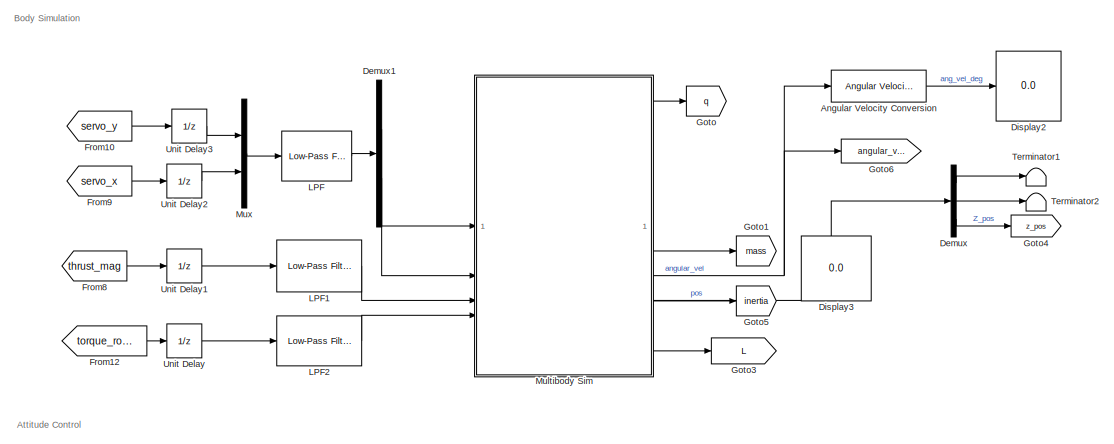
[diagram: root canvas - part 1/3, top center region]
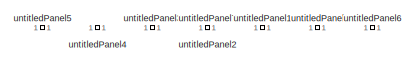
[diagram: root canvas - part 2/3, middle left region]
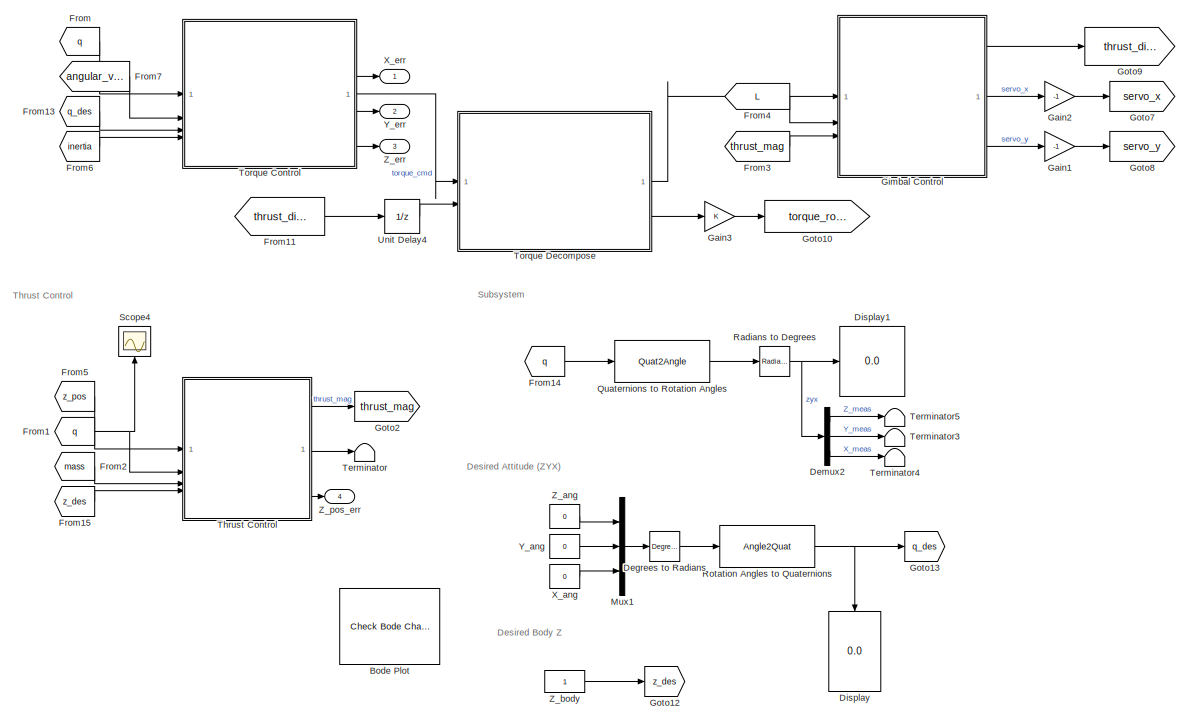
[diagram: root canvas - part 3/3, bottom right region]
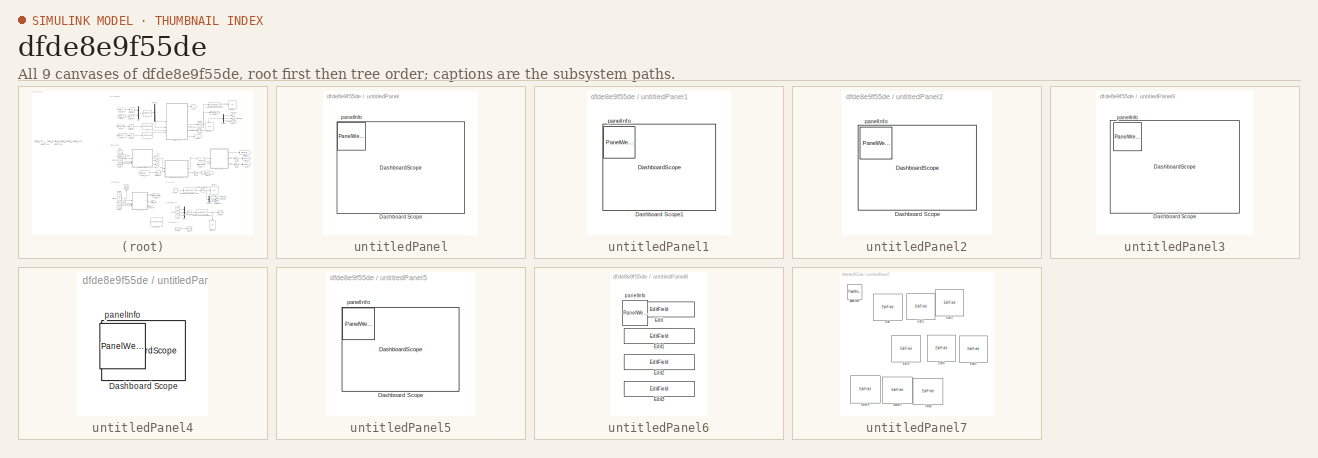
[diagram: thumbnail index - all 9 canvases of the model, root first then tree order]
MODEL slx_dfde8e9f55de
KIND model
CONFIG AbsTol = auto
CONFIG EnableMultiTasking = off
CONFIG FixedStep = 0.001
CONFIG MaxStep = auto
CONFIG MinStep = auto
CONFIG RelTol = 1e-3
CONFIG SampleTimeConstraint = Unconstrained
CONFIG SolverName = VariableStepAuto
CONFIG StartTime = 0.0
CONFIG StopTime = 5
BLOCK [Reference] Angular Velocity Conversion  REF=aerolibconvert2/Angular Velocity
Conversion
  SourceBlock = aerolibconvert2/Angular Velocity\nConversion
  SourceType = Angular Velocity Conversion
BLOCK [Reference] Bode Plot  REF=slctrl_linear/Check Bode 
Characteristics
  InstantiateOnLoad = on
  LibrarySourceBlock = slctrlblks/Linear Analysis Plots/Bode Plot
  SourceBlock = slctrl_linear/Check Bode \nCharacteristics
  SourceType = Checks_Bode
BLOCK [Reference] Degrees to Radians  REF=simulink_extras/Transformations/Degrees to
Radians
  SourceBlock = simulink_extras/Transformations/Degrees to\nRadians
  SourceType = DegreesToRadians
BLOCK [Demux] Demux
  Outputs = 3
BLOCK [Demux] Demux1
  Outputs = 2
BLOCK [Demux] Demux2
  Outputs = 3
BLOCK [Display] Display
  Decimation = 1
  NameLocation = left
BLOCK [Display] Display1
  Decimation = 1
BLOCK [Display] Display2
  Decimation = 1
BLOCK [Display] Display3
  Decimation = 1
  NameLocation = left
BLOCK [From] From
  GotoTag = q
BLOCK [From] From1
  GotoTag = q
BLOCK [From] From10
  GotoTag = servo_y
BLOCK [From] From11
  GotoTag = thrust_direction
BLOCK [From] From12
  GotoTag = torque_roll_mag
BLOCK [From] From13
  GotoTag = q_des
BLOCK [From] From14
  GotoTag = q
BLOCK [From] From15
  GotoTag = z_des
BLOCK [From] From2
  GotoTag = mass
BLOCK [From] From3
  GotoTag = thrust_mag
BLOCK [From] From4
  GotoTag = L
BLOCK [From] From5
  GotoTag = z_pos
BLOCK [From] From6
  GotoTag = inertia
BLOCK [From] From7
  GotoTag = angular_vel
BLOCK [From] From8
  GotoTag = thrust_mag
BLOCK [From] From9
  GotoTag = servo_x
BLOCK [Gain] Gain1
  Gain = -1
BLOCK [Gain] Gain2
  Gain = -1
BLOCK [Gain] Gain3
BLOCK [ModelReference] Gimbal Control
  ModelNameDialog = Gimbal_Control.slx
  ModelReferenceVersion = 1.54
BLOCK [Goto] Goto
  GotoTag = q
BLOCK [Goto] Goto1
  GotoTag = mass
BLOCK [Goto] Goto10
  GotoTag = torque_roll_mag
BLOCK [Goto] Goto12
  GotoTag = z_des
BLOCK [Goto] Goto13
  GotoTag = q_des
BLOCK [Goto] Goto2
  GotoTag = thrust_mag
BLOCK [Goto] Goto3
  GotoTag = L
BLOCK [Goto] Goto4
  GotoTag = z_pos
BLOCK [Goto] Goto5
  GotoTag = inertia
BLOCK [Goto] Goto6
  GotoTag = angular_vel
BLOCK [Goto] Goto7
  GotoTag = servo_x
BLOCK [Goto] Goto8
  GotoTag = servo_y
BLOCK [Goto] Goto9
  GotoTag = thrust_direction
BLOCK [Reference] LPF  REF=eeGeneralControl/Low-Pass Filter
(Discrete or Continuous)
  LibrarySourceBlock = ee_sl_lib/General Control/Low-Pass Filter\n(Discrete or Continuous)
  SourceBlock = eeGeneralControl/Low-Pass Filter\n(Discrete or Continuous)
  SourceType = Low-Pass Filter (Discrete or Continuous)
BLOCK [Reference] LPF1  REF=eeGeneralControl/Low-Pass Filter
(Discrete or Continuous)
  LibrarySourceBlock = ee_sl_lib/General Control/Low-Pass Filter\n(Discrete or Continuous)
  SourceBlock = eeGeneralControl/Low-Pass Filter\n(Discrete or Continuous)
  SourceType = Low-Pass Filter (Discrete or Continuous)
BLOCK [Reference] LPF2  REF=eeGeneralControl/Low-Pass Filter
(Discrete or Continuous)
  LibrarySourceBlock = ee_sl_lib/General Control/Low-Pass Filter\n(Discrete or Continuous)
  SourceBlock = eeGeneralControl/Low-Pass Filter\n(Discrete or Continuous)
  SourceType = Low-Pass Filter (Discrete or Continuous)
BLOCK [SubSystem] Multibody Sim
  ReferencedSubsystem = skeleton_v6_sub
  initial_ang_vel = [0,0,0]
  initial_att = [0,0,0]
BLOCK [Mux] Mux
  DisplayOption = bar
  Inputs = 2
BLOCK [Mux] Mux1
  DisplayOption = bar
  Inputs = 3
BLOCK [Quat2Angle] Quaternions to Rotation Angles
  AttributesFormatString = Rotation Order: %<rotationOrder>
BLOCK [Reference] Radians to Degrees  REF=simulink_extras/Transformations/Radians
to Degrees
  SourceBlock = simulink_extras/Transformations/Radians\nto Degrees
  SourceType = RadiansToDegrees
BLOCK [Angle2Quat] Rotation Angles to Quaternions
  AttributesFormatString = Rotation Order: %<rotationOrder>
BLOCK [Scope] Scope4
  ActiveDisplayYMaximum = 1.391154513131281
  ActiveDisplayYMinimum = -1.2826358132961515
  DataLoggingVariableName = ScopeData11
  Floating = off
  GraphicalSettings = {"AxesScalingProperties":{"AlignXAxis":"Center","AlignYAxis":"Center","AutoScaleXAxisLimits":false,"AxesScaling":"Manual","AxesScalingNumUpdates":10,"ExpandOnly":true,"ScaleAxesLimitsAtStop":false,"XAxisDataRange":100,"YAxisDataRange":80},"DisplayProperties":{"ColorOrder":["auto","auto","auto","auto","auto","auto","auto","auto","auto","auto","auto","auto","auto","auto","auto","auto","auto","auto",...<+2377ch>
  MultipleDisplayCache = [{"MaxYLimMag":10,"MaxYLimReal":1.391154513131281,"MinYLimMag":0,"MinYLimReal":-1.2826358132961515,"PlotAsMagnitudePhase":false,"ShowGrid":true,"ShowLegend":false,"Title":"%<SignalLabel>","YLabel":""}]
  NameLocation = right
  NumInputPorts = 1
  ScopeFrameLocation = window
  WasSavedAsWebScope = on
  WindowPosition = [771.000000,228.000000,560.000000,420.000000,]
BLOCK [Terminator] Terminator
BLOCK [Terminator] Terminator1
BLOCK [Terminator] Terminator2
BLOCK [Terminator] Terminator3
BLOCK [Terminator] Terminator4
BLOCK [Terminator] Terminator5
BLOCK [ModelReference] Thrust Control
  ModelNameDialog = thrust_control.slx
  ModelReferenceVersion = 3.29
BLOCK [ModelReference] Torque Control
  ModelNameDialog = torque_control.slx
  ModelReferenceVersion = 1.119
BLOCK [ModelReference] Torque Decompose
  ModelNameDialog = torque_decompose.slx
  ModelReferenceVersion = 1.40
BLOCK [UnitDelay] Unit Delay
  HasFrameUpgradeWarning = on
  SampleTime = -1
BLOCK [UnitDelay] Unit Delay1
  HasFrameUpgradeWarning = on
  SampleTime = -1
BLOCK [UnitDelay] Unit Delay2
  HasFrameUpgradeWarning = on
  SampleTime = -1
BLOCK [UnitDelay] Unit Delay3
  HasFrameUpgradeWarning = on
  SampleTime = -1
BLOCK [UnitDelay] Unit Delay4
  HasFrameUpgradeWarning = on
  InitialCondition = [0; 0; -1]
  SampleTime = -1
BLOCK [Constant] X_ang
  NameLocation = left
  Value = 0
BLOCK [Outport] X_err
  SignalName = X_err
BLOCK [Constant] Y_ang
  NameLocation = left
  Value = 0
BLOCK [Outport] Y_err
  Port = 2
  SignalName = Y_err
BLOCK [Constant] Z_ang
  NameLocation = left
  Value = 0
BLOCK [Constant] Z_body
  NameLocation = left
BLOCK [Outport] Z_err
  Port = 3
  SignalName = Z_err
BLOCK [Outport] Z_pos_err
  Port = 4
  SignalName = Z_pos_err
BLOCK [SubSystem] untitledPanel
  IsWebBlockPanel = on
  Tag = HiddenForWebPanel
BLOCK [DashboardScope] untitledPanel/Dashboard Scope
  PanelInfo = {"height":239,"left":14,"panelId":"panelId-df574acb-9b53-4ca6-ae86-6ba3631c2ba2","top":14,"type":"panelChild","version":"2019b","width":376,"zIndex":1500002}
  Tag = HiddenForWebPanel
BLOCK [PanelWebBlock] untitledPanel/panelInfo
  PanelInfo = {"compacted":true,"height":270,"isActiveTab":false,"left":1149,"name":"Thrust Mag","panelId":"panelId-df574acb-9b53-4ca6-ae86-6ba3631c2ba2","tabIndex":3,"tabbedSetId":"tabbedSet0758760287","top":188,"type":"panel","version":"2019b","visible":false,"width":411,"zIndex":1500008}
  PanelSnapshot = iVBORw0KGgoAAAANSUhEUgAAAZcAAAEKCAYAAADenhiQAAAACXBIWXMAAA7EAAAOxAGVKw4bAAAb80lEQVR4nO3de3wU9b3/8c/eEhJCAgkhBAJJCCGQq0pyABOpP7RoKwgCUqynVssPq+WoLaEWbT0N9QFWIWpVxOrjV6tVTqyKcrDCT9FyCXKNHkoIItcgECCEkGRBSDa75w/ZuITNZjd8d2ey+3r+AzuZnfnMN5N57/c7lzUcczi2CwAAChm1LgAAEHwIFwCAcoQLAEA5wgUAoBzhAgBQjnABAChHuAAAlCNcAADKES4AAOUIFwCAcoQLAEA5wgUAoBzhAgBQjnABAChHuAAAlCNcAADKES4AAOUIFwCAcoQLAEA5wgUAoBzhAgBQjnABAChH...<+9244ch>
  Tag = HiddenForWebPanel
BLOCK [SubSystem] untitledPanel1
  IsWebBlockPanel = on
  Tag = HiddenForWebPanel
BLOCK [DashboardScope] untitledPanel1/Dashboard Scope1
  PanelInfo = {"height":238,"left":14,"panelId":"panelId-f5ddd5ba-68bf-4bce-b4ed-3ca48cb51992","top":11,"type":"panelChild","version":"2019b","width":384,"zIndex":1500002}
  Tag = HiddenForWebPanel
BLOCK [PanelWebBlock] untitledPanel1/panelInfo
  PanelInfo = {"compacted":true,"height":270,"isActiveTab":false,"left":1149,"name":"Angular Vel","panelId":"panelId-f5ddd5ba-68bf-4bce-b4ed-3ca48cb51992","tabIndex":4,"tabbedSetId":"tabbedSet0758760287","top":188,"type":"panel","version":"2019b","visible":false,"width":411,"zIndex":1500018}
  PanelSnapshot = iVBORw0KGgoAAAANSUhEUgAAAZcAAAEKCAYAAADenhiQAAAACXBIWXMAAA7EAAAOxAGVKw4bAAAgAElEQVR4nO3dd3hUZcIF8DMlvfcC6YGQkBBK6CDoRycEEQREQdR1bWuhqOiuLDZWJYhrQVZXRQSlCNIkCIhLky5CQmiBEEp6Mult2vfHMJNJSJkkM5l2fs/Dw2TafefeO/fM2+4VZCuVp0BERKRHQmMXgIiILA/DhYiI9I7hQkREesdwISIivWO4EBGR3jFciIhI7xguRESkdwwXIiLSO4YLERHpHcOFiIj0juFCRER6x3AhIiK9Y7gQEZHeMVyIiEjvGC5ERKR3DBciItI7hgsREekdw4WIiPSO4UJERHrHcCEiIr1juBARkd4xXMxQNxeX...<+18632ch>
  Tag = HiddenForWebPanel
BLOCK [SubSystem] untitledPanel2
  IsWebBlockPanel = on
  Tag = HiddenForWebPanel
BLOCK [DashboardScope] untitledPanel2/Dashboard Scope
  LegendPosition = InsideTop
  PanelInfo = {"height":309,"left":16,"panelId":"panelId-bf281c9f-ba11-4427-b965-b4cc8690ae3f","top":16,"type":"panelChild","version":"2019b","width":542,"zIndex":1500002}
  Tag = HiddenForWebPanel
BLOCK [PanelWebBlock] untitledPanel2/panelInfo
  PanelInfo = {"compacted":true,"height":344,"isActiveTab":true,"left":1149,"name":"Pos","panelId":"panelId-bf281c9f-ba11-4427-b965-b4cc8690ae3f","tabIndex":0,"tabbedSetId":"tabbedSet0758760287","top":188,"type":"panel","version":"2019b","visible":true,"width":588,"zIndex":1500006}
  PanelSnapshot = iVBORw0KGgoAAAANSUhEUgAAAkgAAAFUCAYAAADf4sPSAAAACXBIWXMAAA7EAAAOxAGVKw4bAAAgAElEQVR4nO3deXiTZdr+8TPdNwJYCi07ZYeCsohlZBFeQEZQEXeqwqioyIi+LIqj/sRR1GEKKoqOjs6IKI4LOA4qjAsq4EsRUYFSFtkthC60QFe6JL8/sLXElm5JnuTJ93McHsiTJ8l1NbE5va87iWXniRO2yIiI7KDg4NMCAADwY2WlpaEFhYUtLIdLS7cHBQURjgAAACSVlZWFBhCOAAAAfhUUFHQ6wOgiAAAAvA0BCQAAwAkBCQAAwAkBCQAAwAkBCQAAwAkBCQAAwAkBCQAAwAkBCQAAwAkBCQAAwAkBCQAAwAkBCQAAwEmQ0QW4y+Au...<+16444ch>
  Tag = HiddenForWebPanel
BLOCK [SubSystem] untitledPanel3
  IsWebBlockPanel = on
  Tag = HiddenForWebPanel
BLOCK [DashboardScope] untitledPanel3/Dashboard Scope
  LegendPosition = InsideTop
  PanelInfo = {"height":244,"left":9,"panelId":"panelId-bc59ce79-e06d-46e6-8976-fc32dab224ce","top":11,"type":"panelChild","version":"2019b","width":384,"zIndex":1500002}
  Tag = HiddenForWebPanel
BLOCK [PanelWebBlock] untitledPanel3/panelInfo
  PanelInfo = {"compacted":true,"height":270,"isActiveTab":false,"left":1149,"name":"Torque Cmd","panelId":"panelId-bc59ce79-e06d-46e6-8976-fc32dab224ce","tabIndex":2,"tabbedSetId":"tabbedSet0758760287","top":188,"type":"panel","version":"2019b","visible":false,"width":411,"zIndex":1500010}
  PanelSnapshot = iVBORw0KGgoAAAANSUhEUgAAAZcAAAEKCAYAAADenhiQAAAACXBIWXMAAA7EAAAOxAGVKw4bAAAgAElEQVR4nO3deXhTZcI28DtpWrqX0p2l+wKlbFKFshQGUVREC6KyOMigQHF05GXXGdkcF5YiOsq0gqM4iggM4ocOoLhQUcACA4JVCiXspaVSLIWWLsn3RznhNE3SJD3JyXL/rouLJjnJeXKW3HmW80RxQavdDyIiIgkp5S4AERG5HoYLERFJjuFCRESSY7gQEZHkGC5ERCQ5hgsREUmO4UJERJJjuBARkeRUchdAKhmJcb3lLgMRkTPYc0J9wNbrcJlwAYBTJ9RyF0F2h48cRY9uaXIXQ3bcDo24HRpxO9wSmxhnl/WwWYyIiCTHcCEiIskx...<+18012ch>
  Tag = HiddenForWebPanel
BLOCK [SubSystem] untitledPanel4
  IsWebBlockPanel = on
  Tag = HiddenForWebPanel
BLOCK [DashboardScope] untitledPanel4/Dashboard Scope
  PanelInfo = {"height":302,"left":19,"panelId":"panelId-afeff753-055c-4466-a3b4-b1d4746a0976","top":21,"type":"panelChild","version":"2019b","width":485,"zIndex":1500002}
  Tag = HiddenForWebPanel
BLOCK [PanelWebBlock] untitledPanel4/panelInfo
  PanelInfo = {"compacted":true,"height":348,"isActiveTab":false,"left":1149,"name":"Gimbal","panelId":"panelId-afeff753-055c-4466-a3b4-b1d4746a0976","tabIndex":5,"tabbedSetId":"tabbedSet0758760287","top":188,"type":"panel","version":"2019b","visible":false,"width":530,"zIndex":1500014}
  PanelSnapshot = iVBORw0KGgoAAAANSUhEUgAAAg4AAAFYCAYAAAA7hHROAAAACXBIWXMAAA7EAAAOxAGVKw4bAAAZnklEQVR4nO3ceXzU9Z348c/kQAhHgACBcAlyn+WoUKVSWxVaFQGtRVhXbX9uXfxJW/CutmBtZRXX2i5eq22tLZWuQq1aaIu6ghYUUFFKtSqHHOGQhCPhSEJm/2hBQIIfBZkMeT4fjzzIfDPznfcnM0lefL+TJNYlk4sCAECEjFQPAACkD+EAAEQTDgBANOEAAEQTDgBANOEAAEQTDgBANOEAAEQTDgBANOEAAEQTDgBANOEAAEQTDgBANOEAAEQTDgBANOEAAEQTDgBANOEAAEQTDgBANOEAAEQTDgBANOEAAEQTDgBANOEAAEQTDgBANOEA...<+8448ch>
  Tag = HiddenForWebPanel
BLOCK [SubSystem] untitledPanel5
  IsWebBlockPanel = on
  Tag = HiddenForWebPanel
BLOCK [DashboardScope] untitledPanel5/Dashboard Scope
  PanelInfo = {"height":305,"left":18,"panelId":"panelId-73bbacd2-b43c-49af-8a25-33fa81718205","top":18,"type":"panelChild","version":"2019b","width":549,"zIndex":1500002}
  Tag = HiddenForWebPanel
BLOCK [PanelWebBlock] untitledPanel5/panelInfo
  PanelInfo = {"compacted":true,"height":346,"isActiveTab":false,"left":1149,"name":"Attitude","panelId":"panelId-73bbacd2-b43c-49af-8a25-33fa81718205","tabIndex":1,"tabbedSetId":"tabbedSet0758760287","top":188,"type":"panel","version":"2019b","visible":false,"width":589,"zIndex":1500016}
  PanelSnapshot = iVBORw0KGgoAAAANSUhEUgAAAkkAAAFWCAYAAAB96AnnAAAACXBIWXMAAA7EAAAOxAGVKw4bAAAgAElEQVR4nOydeZjUVNr276SW3lgaEOgGmq1RQFnEBTfU0XFm3FAU3EAQ3EWdmU/QWRx3x5lR9H1nccEVURFXxBXfcWRwdHCdUVEUBWm66W6apZu1l1qS74+qVCWppCqpvSr377r66kpycnKSSuXceZ7nPEdokuVPQQghhBBCNIi5bgAhhBBCSD5CkUQIIYQQYgBFEiGEEEKIARRJhBBCCCEGUCQRQgghhBhAkUQIIYQQYgBFEiGEEEKIARRJhBBCCCEGUCQRQgghhBhAkUQIIYQQYgBFEiGEEEKIARRJhBBCCCEGUCQRQgghhBhAkUQIIYQQ...<+34336ch>
  Tag = HiddenForWebPanel
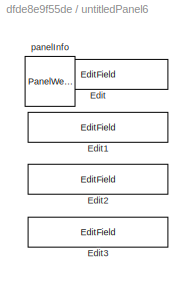
BLOCK [SubSystem] untitledPanel6
  IsWebBlockPanel = on
  Tag = HiddenForWebPanel
BLOCK [EditField] untitledPanel6/Edit
  Alignment = Center
  LabelPosition = Hide
  PanelInfo = {"height":39,"left":174,"panelId":"panelId-3babcc67-e047-4488-9d66-89986165da81","top":41,"type":"panelChild","version":"2019b","width":186,"zIndex":1500004}
  ShowInitialText = on
  Tag = HiddenForWebPanel
BLOCK [EditField] untitledPanel6/Edit1
  Alignment = Center
  LabelPosition = Hide
  PanelInfo = {"height":39,"left":174,"panelId":"panelId-3babcc67-e047-4488-9d66-89986165da81","top":97,"type":"panelChild","version":"2019b","width":186,"zIndex":1500008}
  ShowInitialText = on
  Tag = HiddenForWebPanel
BLOCK [EditField] untitledPanel6/Edit2
  Alignment = Center
  LabelPosition = Hide
  PanelInfo = {"height":39,"left":175,"panelId":"panelId-3babcc67-e047-4488-9d66-89986165da81","top":161,"type":"panelChild","version":"2019b","width":186,"zIndex":1500006}
  ShowInitialText = on
  Tag = HiddenForWebPanel
BLOCK [EditField] untitledPanel6/Edit3
  Alignment = Center
  LabelPosition = Hide
  PanelInfo = {"height":39,"left":175,"panelId":"panelId-3babcc67-e047-4488-9d66-89986165da81","top":223,"type":"panelChild","version":"2019b","width":186,"zIndex":1500002}
  ShowInitialText = on
  Tag = HiddenForWebPanel
BLOCK [PanelWebBlock] untitledPanel6/panelInfo
  PanelInfo = {"compacted":true,"height":343,"isActiveTab":true,"labels":{"label0760470857":{"deleted":false,"left":27,"settings":{"backgroundColor":"rgba(0, 0, 0, 0)","bold":false,"font":"Arial","fontColor":"black","fontSize":1.19,"italicized":false,"underlined":false},"text":"Z-axis Angle","top":50},"label1202873996":{"deleted":false,"left":30,"settings":{"backgroundColor":"rgba(0, 0, 0, 0)","bold":false,"fon...<+813ch>
  PanelSnapshot = iVBORw0KGgoAAAANSUhEUgAAAYAAAAFTCAYAAAAwbds+AAAACXBIWXMAAA7EAAAOxAGVKw4bAAAgAElEQVR4nO3cd1gU1/s28Gd2l6WtS+9NmoAKCqixR4nGXhCDETWxgtgrtgiKJbEbFVGxgSL2WBHUWGM0xhr9WUITkN47C7vs+4eBl275AivO/bmuvXJl5syZZ0mYe+acMzAvs7OTlJWU0nlyciICAIAvnri0VL6gsFCTiSstfcbj8XDxBwBgEbFYLM/BxR8AgH14PJ6II+siAABANhAAAAAshQAAAGApBAAAAEshAAAAWAoBAADAUggAAACWQgAAALAUAgAAgKUQAAAALIUAAABgKQQAAABLIQAAAFgKAQAAwFIIAAAAlkIAAACwFAIAAICl...<+20084ch>
  Tag = HiddenForWebPanel
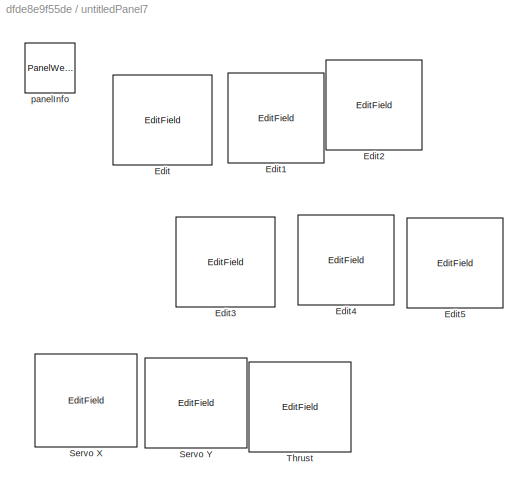
BLOCK [SubSystem] untitledPanel7
  IsWebBlockPanel = on
  Tag = HiddenForWebPanel
BLOCK [EditField] untitledPanel7/Edit
  Alignment = Center
  LabelPosition = Hide
  PanelInfo = {"height":68,"left":21,"panelId":"panelId-9a0878ef-bd6a-447e-860e-43c9df46bd55","top":39,"type":"panelChild","version":"2019b","width":75,"zIndex":1500002}
  ShowInitialText = on
  Tag = HiddenForWebPanel
BLOCK [EditField] untitledPanel7/Edit1
  Alignment = Center
  LabelPosition = Hide
  PanelInfo = {"height":68,"left":100,"panelId":"panelId-9a0878ef-bd6a-447e-860e-43c9df46bd55","top":38,"type":"panelChild","version":"2019b","width":73,"zIndex":1500004}
  ShowInitialText = on
  Tag = HiddenForWebPanel
BLOCK [EditField] untitledPanel7/Edit2
  Alignment = Center
  LabelPosition = Hide
  PanelInfo = {"height":68,"left":180,"panelId":"panelId-9a0878ef-bd6a-447e-860e-43c9df46bd55","top":38,"type":"panelChild","version":"2019b","width":73,"zIndex":1500006}
  ShowInitialText = on
  Tag = HiddenForWebPanel
BLOCK [EditField] untitledPanel7/Edit3
  Alignment = Center
  LabelPosition = Hide
  PanelInfo = {"height":68,"left":23,"panelId":"panelId-9a0878ef-bd6a-447e-860e-43c9df46bd55","top":151,"type":"panelChild","version":"2019b","width":75,"zIndex":1500008}
  ShowInitialText = on
  Tag = HiddenForWebPanel
BLOCK [EditField] untitledPanel7/Edit4
  Alignment = Center
  LabelPosition = Hide
  PanelInfo = {"height":68,"left":104,"panelId":"panelId-9a0878ef-bd6a-447e-860e-43c9df46bd55","top":151,"type":"panelChild","version":"2019b","width":73,"zIndex":1500010}
  ShowInitialText = on
  Tag = HiddenForWebPanel
BLOCK [EditField] untitledPanel7/Edit5
  Alignment = Center
  LabelPosition = Hide
  PanelInfo = {"height":68,"left":183,"panelId":"panelId-9a0878ef-bd6a-447e-860e-43c9df46bd55","top":151,"type":"panelChild","version":"2019b","width":73,"zIndex":1500012}
  ShowInitialText = on
  Tag = HiddenForWebPanel
BLOCK [EditField] untitledPanel7/Servo X
  Alignment = Center
  LabelPosition = Hide
  PanelInfo = {"height":70,"left":20,"panelId":"panelId-9a0878ef-bd6a-447e-860e-43c9df46bd55","top":260,"type":"panelChild","version":"2019b","width":76,"zIndex":1500016}
  ShowInitialText = on
  Tag = HiddenForWebPanel
BLOCK [EditField] untitledPanel7/Servo Y
  Alignment = Center
  LabelPosition = Hide
  PanelInfo = {"height":70,"left":105,"panelId":"panelId-9a0878ef-bd6a-447e-860e-43c9df46bd55","top":261,"type":"panelChild","version":"2019b","width":76,"zIndex":1500018}
  ShowInitialText = on
  Tag = HiddenForWebPanel
BLOCK [EditField] untitledPanel7/Thrust
  Alignment = Center
  LabelPosition = Hide
  PanelInfo = {"height":69,"left":187,"panelId":"panelId-9a0878ef-bd6a-447e-860e-43c9df46bd55","top":262,"type":"panelChild","version":"2019b","width":70,"zIndex":1500014}
  ShowInitialText = on
  Tag = HiddenForWebPanel
BLOCK [PanelWebBlock] untitledPanel7/panelInfo
  PanelInfo = {"compacted":true,"height":352,"isActiveTab":false,"labels":{"label2638262863":{"deleted":false,"left":17,"settings":{"backgroundColor":"rgba(0, 0, 0, 0)","bold":false,"font":"Arial","fontColor":"black","fontSize":0.97,"italicized":false,"underlined":false},"text":"Initial Angular Velocity (X, Y, Z)","top":125},"label3097643195":{"deleted":false,"left":38,"settings":{"backgroundColor":"rgba(0, 0, ...<+1075ch>
  PanelSnapshot = iVBORw0KGgoAAAANSUhEUgAAASgAAAFcCAYAAAB7tCPOAAAACXBIWXMAAA7EAAAOxAGVKw4bAAAgAElEQVR4nO3dd1hT1/8H8E9CQiDsLSBLQPYS+VarrQtnHZXWUXGhVuuorVq1rZUiHVqwddVdFTdfrRvtT0TrrHshMgRBRJA9RAgJCfn9YeELGCpEkEP6fj1Pnj7k3nvuuR9u3jn33GvhZMnlNwgAgEHc1u4AAEBDEFAAwCwEFAAwCwEFAMxCQAEAsxBQAMAsBBQAMAsBBQDMQkABALMQUADALAQUADALAQUAzEJAAQCzEFAAwCwEFAAwq9UCykYg6LQuLMxE0bKLZ85oWXA4vnF37mg0pq0r588Lm7K+sprar8by9/Jynj1hgvXrtnP90iXN...<+17360ch>
  Tag = HiddenForWebPanel
ANNOTATION (root): Attitude Control
ANNOTATION (root): Body Simulation
ANNOTATION (root): Desired Attitude (ZYX)
ANNOTATION (root): Desired Body Z
ANNOTATION (root): Subsystem
ANNOTATION (root): Thrust Control
LINE Angular Velocity Conversion:1 -> Display2:1
LINE Degrees to Radians:1 -> Rotation Angles to Quaternions:1
LINE Demux1:1 -> Multibody Sim:1
LINE Demux1:2 -> Multibody Sim:2
LINE Demux2:1 -> Terminator5:1
LINE Demux2:2 -> Terminator3:1
LINE Demux2:3 -> Terminator4:1
LINE Demux:1 -> Terminator1:1
LINE Demux:2 -> Terminator2:1
LINE Demux:3 -> Goto4:1
LINE From10:1 -> Unit Delay3:1
LINE From11:1 -> Unit Delay4:1
LINE From12:1 -> Unit Delay:1
LINE From13:1 -> Torque Control:3
LINE From14:1 -> Quaternions to Rotation Angles:1
LINE From15:1 -> Thrust Control:4
NET From1:1 -> Scope4:1, Thrust Control:2
LINE From2:1 -> Thrust Control:3
LINE From3:1 -> Gimbal Control:3
LINE From4:1 -> Gimbal Control:2
LINE From5:1 -> Thrust Control:1
LINE From6:1 -> Torque Control:4
LINE From7:1 -> Torque Control:2
LINE From8:1 -> Unit Delay1:1
LINE From9:1 -> Unit Delay2:1
LINE From:1 -> Torque Control:1
LINE Gain1:1 -> Goto8:1
LINE Gain2:1 -> Goto7:1
LINE Gain3:1 -> Goto10:1
LINE Gimbal Control:1 -> Goto9:1
LINE Gimbal Control:2 -> Gain2:1
LINE Gimbal Control:3 -> Gain1:1
LINE LPF1:1 -> Multibody Sim:3
LINE LPF2:1 -> Multibody Sim:4
LINE LPF:1 -> Demux1:1
LINE Multibody Sim:1 -> Goto:1
NET Multibody Sim:2 -> Angular Velocity Conversion:1, Goto6:1
NET Multibody Sim:3 -> Demux:1, Display3:1
LINE Multibody Sim:4 -> Goto1:1
LINE Multibody Sim:5 -> Goto5:1
LINE Multibody Sim:6 -> Goto3:1
LINE Mux1:1 -> Degrees to Radians:1
LINE Mux:1 -> LPF:1
LINE Quaternions to Rotation Angles:1 -> Radians to Degrees:1
NET Radians to Degrees:1 -> Demux2:1, Display1:1
NET Rotation Angles to Quaternions:1 -> Display:1, Goto13:1
LINE Thrust Control:1 -> Goto2:1
LINE Thrust Control:2 -> Terminator:1
LINE Thrust Control:3 -> Z_pos_err:1
LINE Torque Control:1 -> Torque Decompose:1
LINE Torque Control:2 -> X_err:1
LINE Torque Control:3 -> Y_err:1
LINE Torque Control:4 -> Z_err:1
LINE Torque Decompose:1 -> Gimbal Control:1
LINE Torque Decompose:2 -> Gain3:1
LINE Unit Delay1:1 -> LPF1:1
LINE Unit Delay2:1 -> Mux:2
LINE Unit Delay3:1 -> Mux:1
LINE Unit Delay4:1 -> Torque Decompose:2
LINE Unit Delay:1 -> LPF2:1
LINE X_ang:1 -> Mux1:3
LINE Y_ang:1 -> Mux1:2
LINE Z_ang:1 -> Mux1:1
LINE Z_body:1 -> Goto12:1
note: NET lines group one-source signal fan-out (src -> all destinations, sorted); 1:1 wires keep LINE
